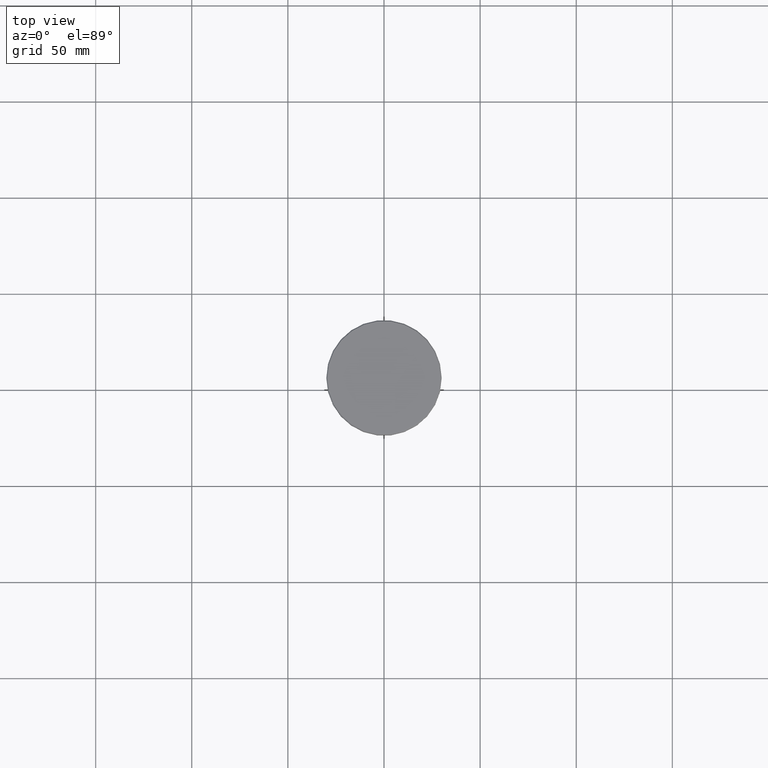
[diagram: clean part render]
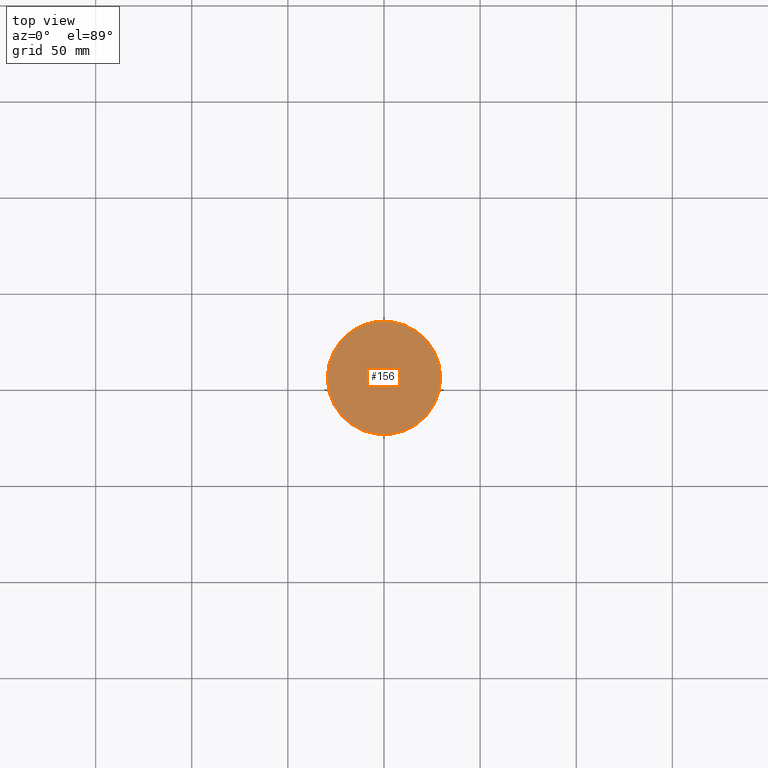
[diagram: same view with one face highlighted and labeled with its STEP entity id]
A machine part, top view. The second image highlights one B-rep face of the part: STEP entity #156.
In plain terms, the highlighted planar face has unit normal (0, -0, 1).
Its self-contained STEP definition (entity closure, byte-faithful):
#13 = ORIENTED_EDGE ( 'NONE', *, *, #618, .T. ) ;
#48 = DIRECTION ( 'NONE',  ( 1.000000000000000000, 0.000000000000000000, 0.000000000000000000 ) ) ;
#132 = CIRCLE ( 'NONE', #561, 29.49999999999985789 ) ;
#154 = ORIENTED_EDGE ( 'NONE', *, *, #534, .T. ) ;
#156 = ADVANCED_FACE ( 'NONE', ( #250 ), #1057, .T. ) ;
#228 = CARTESIAN_POINT ( 'NONE',  ( 0.000000000000000000, 0.000000000000000000, 0.000000000000000000 ) ) ;
#250 = FACE_OUTER_BOUND ( 'NONE', #472, .T. ) ;
#265 = AXIS2_PLACEMENT_3D ( 'NONE', #228, #1055, #48 ) ;
#386 = CIRCLE ( 'NONE', #265, 29.49999999999985789 ) ;
#451 = CARTESIAN_POINT ( 'NONE',  ( 0.000000000000000000, 0.000000000000000000, 0.000000000000000000 ) ) ;
#472 = EDGE_LOOP ( 'NONE', ( #154, #13 ) ) ;
#534 = EDGE_CURVE ( 'NONE', #1021, #733, #132, .T. ) ;
#561 = AXIS2_PLACEMENT_3D ( 'NONE', #1109, #734, #834 ) ;
#618 = EDGE_CURVE ( 'NONE', #733, #1021, #386, .T. ) ;
#720 = CARTESIAN_POINT ( 'NONE',  ( 29.49999999999985789, 3.643324227463366713E-15, 0.000000000000000000 ) ) ;
#733 = VERTEX_POINT ( 'NONE', #720 ) ;
#734 = DIRECTION ( 'NONE',  ( -0.000000000000000000, -0.000000000000000000, 1.000000000000000000 ) ) ;
#801 = DIRECTION ( 'NONE',  ( 1.000000000000000000, 0.000000000000000000, 0.000000000000000000 ) ) ;
#834 = DIRECTION ( 'NONE',  ( 1.000000000000000000, 0.000000000000000000, 0.000000000000000000 ) ) ;
#843 = AXIS2_PLACEMENT_3D ( 'NONE', #451, #995, #801 ) ;
#995 = DIRECTION ( 'NONE',  ( 0.000000000000000000, -0.000000000000000000, 1.000000000000000000 ) ) ;
#1021 = VERTEX_POINT ( 'NONE', #1061 ) ;
#1055 = DIRECTION ( 'NONE',  ( -0.000000000000000000, -0.000000000000000000, 1.000000000000000000 ) ) ;
#1057 = PLANE ( 'NONE',  #843 ) ;
#1061 = CARTESIAN_POINT ( 'NONE',  ( -29.49999999999985789, 0.000000000000000000, 0.000000000000000000 ) ) ;
#1109 = CARTESIAN_POINT ( 'NONE',  ( 0.000000000000000000, 0.000000000000000000, 0.000000000000000000 ) ) ;